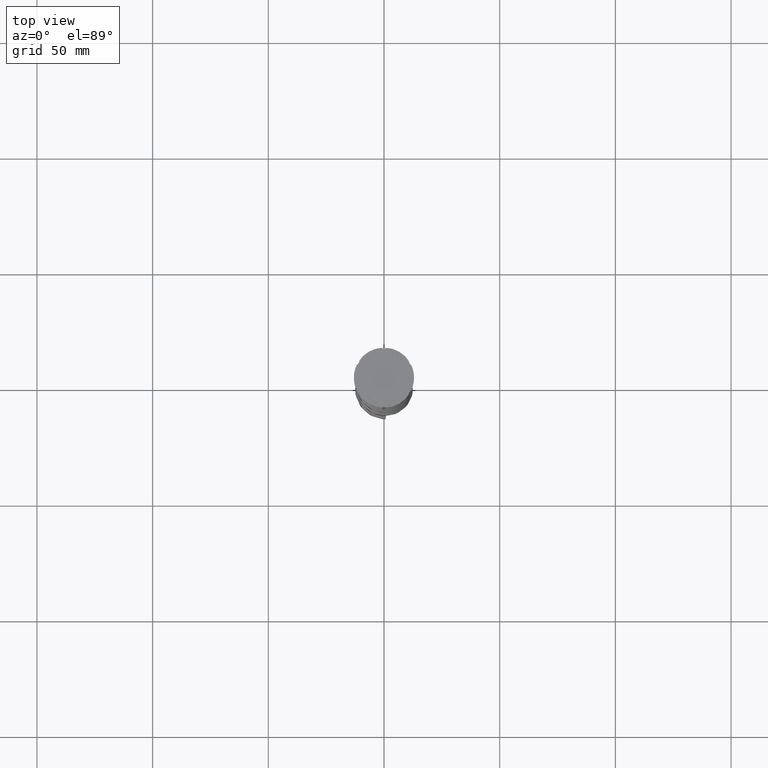
[diagram: clean part render]
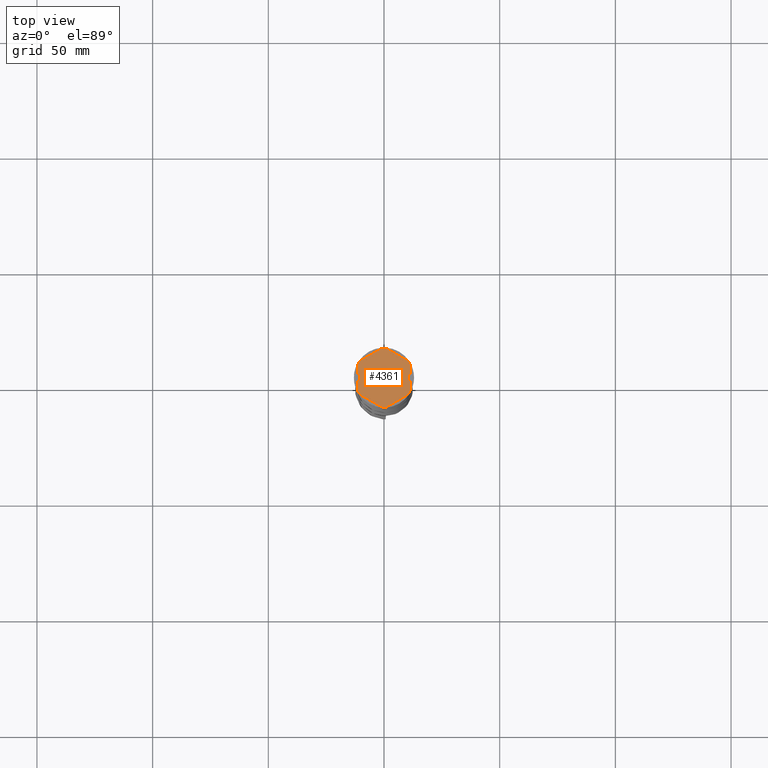
[diagram: same view with one face highlighted and labeled with its STEP entity id]
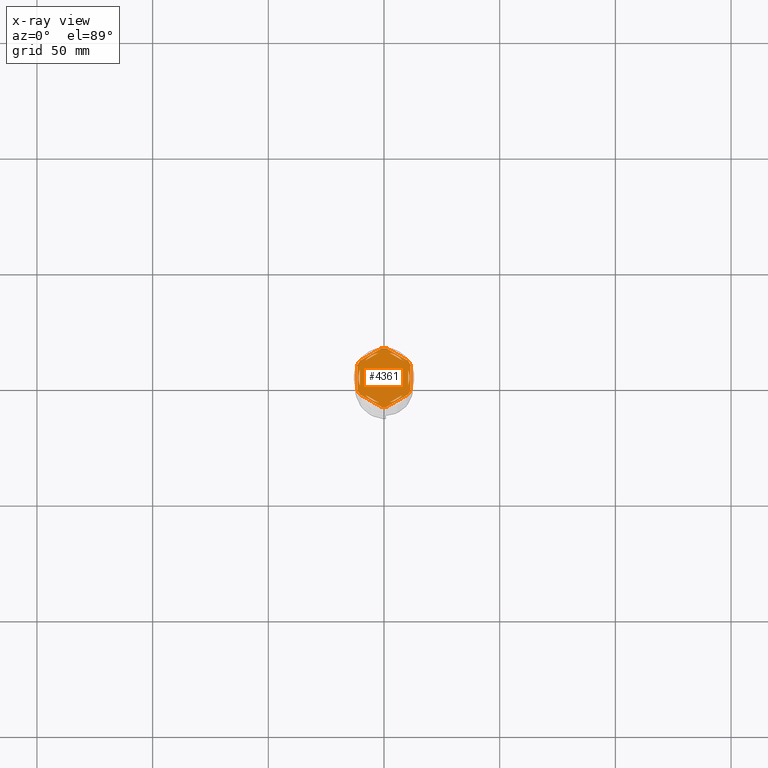
[diagram: x-ray of the same camera — body ghosted, the highlighted face saturated]
A machine part, top view. The second image highlights one B-rep face of the part: STEP entity #4361.
The next image is the same camera in x-ray: the body ghosted, the highlighted face saturated — about 0% of this face is hidden behind the body in this view.
In plain terms, the highlighted planar face has unit normal (0, 0, 1).
Its self-contained STEP definition (entity closure, byte-faithful):
#20 = EDGE_CURVE ( 'NONE', #4263, #2020, #3789, .T. ) ;
#32 = DIRECTION ( 'NONE',  ( 1.000000000000000000, 0.000000000000000000, 0.000000000000000000 ) ) ;
#41 = CARTESIAN_POINT ( 'NONE',  ( -8.089454172900133244, -7.453907108661111280, -1.000000000000000888 ) ) ;
#43 = ORIENTED_EDGE ( 'NONE', *, *, #2613, .F. ) ;
#61 = LINE ( 'NONE', #3528, #1998 ) ;
#68 = ORIENTED_EDGE ( 'NONE', *, *, #1784, .F. ) ;
#96 = AXIS2_PLACEMENT_3D ( 'NONE', #1537, #2940, #1565 ) ;
#107 = ORIENTED_EDGE ( 'NONE', *, *, #3759, .F. ) ;
#118 = EDGE_CURVE ( 'NONE', #2630, #1984, #653, .T. ) ;
#124 = ORIENTED_EDGE ( 'NONE', *, *, #20, .T. ) ;
#132 = CARTESIAN_POINT ( 'NONE',  ( 11.49999999999999822, 5.388877434122992582, -1.000000000000000000 ) ) ;
#168 = VECTOR ( 'NONE', #2298, 1000.000000000000000 ) ;
#215 = EDGE_LOOP ( 'NONE', ( #2163, #4130 ) ) ;
#231 = CIRCLE ( 'NONE', #1174, 12.69999999999999929 ) ;
#244 = EDGE_CURVE ( 'NONE', #2757, #2043, #1571, .T. ) ;
#265 = DIRECTION ( 'NONE',  ( 1.000000000000000000, 0.000000000000000000, 0.000000000000000000 ) ) ;
#276 = ORIENTED_EDGE ( 'NONE', *, *, #244, .F. ) ;
#295 = AXIS2_PLACEMENT_3D ( 'NONE', #2873, #2492, #3873 ) ;
#300 = CARTESIAN_POINT ( 'NONE',  ( -10.49999999999999822, -3.278719262151000624, -1.000000000000000888 ) ) ;
#340 = EDGE_LOOP ( 'NONE', ( #4338, #107 ) ) ;
#398 = ORIENTED_EDGE ( 'NONE', *, *, #2602, .F. ) ;
#426 = ORIENTED_EDGE ( 'NONE', *, *, #4389, .F. ) ;
#448 = DIRECTION ( 'NONE',  ( 0.000000000000000000, -1.000000000000000000, 0.000000000000000000 ) ) ;
#465 = ORIENTED_EDGE ( 'NONE', *, *, #3410, .F. ) ;
#468 = LINE ( 'NONE', #2964, #1248 ) ;
#476 = CARTESIAN_POINT ( 'NONE',  ( -2.410545827099876082, -10.73262637081210435, -1.000000000000000888 ) ) ;
#486 = DIRECTION ( 'NONE',  ( -1.430775808321104180E-16, -1.000000000000000000, 0.000000000000000000 ) ) ;
#500 = DIRECTION ( 'NONE',  ( 1.000000000000000000, 0.000000000000000000, 0.000000000000000000 ) ) ;
#599 = AXIS2_PLACEMENT_3D ( 'NONE', #2456, #4180, #980 ) ;
#653 = CIRCLE ( 'NONE', #2920, 11.00000000000000000 ) ;
#674 = CIRCLE ( 'NONE', #2726, 12.69999999999999929 ) ;
#680 = EDGE_CURVE ( 'NONE', #1489, #2942, #1449, .T. ) ;
#759 = EDGE_CURVE ( 'NONE', #2043, #868, #1680, .T. ) ;
#766 = EDGE_LOOP ( 'NONE', ( #2774, #465 ) ) ;
#784 = FACE_BOUND ( 'NONE', #2083, .T. ) ;
#802 = CARTESIAN_POINT ( 'NONE',  ( -10.41690475583121689, 7.264853426459546348, -1.000000000000000000 ) ) ;
#824 = EDGE_CURVE ( 'NONE', #3751, #3962, #3575, .T. ) ;
#861 = DIRECTION ( 'NONE',  ( -0.000000000000000000, -0.000000000000000000, -1.000000000000000000 ) ) ;
#868 = VERTEX_POINT ( 'NONE', #1131 ) ;
#880 = VERTEX_POINT ( 'NONE', #1840 ) ;
#886 = CIRCLE ( 'NONE', #599, 11.00000000000000000 ) ;
#935 = DIRECTION ( 'NONE',  ( 1.306360520641008153E-16, 1.000000000000000000, 0.000000000000000000 ) ) ;
#943 = VECTOR ( 'NONE', #3356, 1000.000000000000000 ) ;
#944 = LINE ( 'NONE', #3036, #2221 ) ;
#957 = EDGE_LOOP ( 'NONE', ( #1748, #43 ) ) ;
#980 = DIRECTION ( 'NONE',  ( 1.000000000000000000, 0.000000000000000000, 0.000000000000000000 ) ) ;
#985 = CARTESIAN_POINT ( 'NONE',  ( -10.49999999999999822, 3.278719262151000624, -1.000000000000000888 ) ) ;
#1021 = DIRECTION ( 'NONE',  ( 0.8660254037844387076, -0.4999999999999999445, 0.000000000000000000 ) ) ;
#1033 = AXIS2_PLACEMENT_3D ( 'NONE', #3767, #3111, #4490 ) ;
#1088 = ORIENTED_EDGE ( 'NONE', *, *, #2124, .T. ) ;
#1106 = AXIS2_PLACEMENT_3D ( 'NONE', #3730, #3343, #3049 ) ;
#1110 = CARTESIAN_POINT ( 'NONE',  ( 0.000000000000000000, 0.000000000000000000, -1.000000000000000000 ) ) ;
#1131 = CARTESIAN_POINT ( 'NONE',  ( -11.00000000000000000, 0.000000000000000000, -1.000000000000000000 ) ) ;
#1164 = ORIENTED_EDGE ( 'NONE', *, *, #680, .T. ) ;
#1174 = AXIS2_PLACEMENT_3D ( 'NONE', #3690, #3397, #265 ) ;
#1187 = DIRECTION ( 'NONE',  ( -0.000000000000000000, -0.000000000000000000, -1.000000000000000000 ) ) ;
#1248 = VECTOR ( 'NONE', #486, 1000.000000000000000 ) ;
#1264 = VERTEX_POINT ( 'NONE', #1909 ) ;
#1274 = CARTESIAN_POINT ( 'NONE',  ( 8.089454172900138573, 7.453907108661105063, -1.000000000000000888 ) ) ;
#1295 = EDGE_CURVE ( 'NONE', #1264, #880, #468, .T. ) ;
#1304 = VERTEX_POINT ( 'NONE', #132 ) ;
#1359 = CARTESIAN_POINT ( 'NONE',  ( 10.41690475583121156, 7.264853426459550789, -1.000000000000000000 ) ) ;
#1373 = ORIENTED_EDGE ( 'NONE', *, *, #759, .F. ) ;
#1390 = VERTEX_POINT ( 'NONE', #4034 ) ;
#1397 = AXIS2_PLACEMENT_3D ( 'NONE', #2252, #3956, #500 ) ;
#1402 = DIRECTION ( 'NONE',  ( -0.8660254037844388186, 0.4999999999999997224, 0.000000000000000000 ) ) ;
#1408 = CIRCLE ( 'NONE', #3306, 11.00000000000000000 ) ;
#1409 = DIRECTION ( 'NONE',  ( 0.000000000000000000, 0.000000000000000000, 1.000000000000000000 ) ) ;
#1428 = DIRECTION ( 'NONE',  ( -0.8660254037844385966, -0.5000000000000001110, 0.000000000000000000 ) ) ;
#1432 = DIRECTION ( 'NONE',  ( 0.000000000000000000, 0.000000000000000000, 1.000000000000000000 ) ) ;
#1436 = CARTESIAN_POINT ( 'NONE',  ( 0.000000000000000000, 0.000000000000000000, -1.000000000000000000 ) ) ;
#1441 = ORIENTED_EDGE ( 'NONE', *, *, #3943, .T. ) ;
#1449 = LINE ( 'NONE', #2472, #2572 ) ;
#1489 = VERTEX_POINT ( 'NONE', #4080 ) ;
#1512 = EDGE_CURVE ( 'NONE', #1489, #2020, #231, .T. ) ;
#1537 = CARTESIAN_POINT ( 'NONE',  ( 0.000000000000000000, 0.000000000000000000, -1.000000000000000000 ) ) ;
#1565 = DIRECTION ( 'NONE',  ( 1.000000000000000000, 0.000000000000000000, 0.000000000000000000 ) ) ;
#1567 = CARTESIAN_POINT ( 'NONE',  ( 2.410545827099865868, -10.73262637081210791, -1.000000000000000888 ) ) ;
#1571 = LINE ( 'NONE', #3946, #943 ) ;
#1587 = VERTEX_POINT ( 'NONE', #41 ) ;
#1608 = VERTEX_POINT ( 'NONE', #2509 ) ;
#1614 = CIRCLE ( 'NONE', #1397, 12.69999999999999929 ) ;
#1649 = CARTESIAN_POINT ( 'NONE',  ( 8.089454172900135021, -7.453907108661109504, -1.000000000000000888 ) ) ;
#1658 = EDGE_CURVE ( 'NONE', #1733, #1608, #1741, .T. ) ;
#1680 = CIRCLE ( 'NONE', #1825, 11.00000000000000000 ) ;
#1682 = DIRECTION ( 'NONE',  ( 0.000000000000000000, 0.000000000000000000, 1.000000000000000000 ) ) ;
#1733 = VERTEX_POINT ( 'NONE', #1359 ) ;
#1741 = LINE ( 'NONE', #3866, #3221 ) ;
#1748 = ORIENTED_EDGE ( 'NONE', *, *, #824, .F. ) ;
#1764 = VECTOR ( 'NONE', #3131, 1000.000000000000000 ) ;
#1774 = DIRECTION ( 'NONE',  ( 0.8660254037844385966, 0.4999999999999999445, 0.000000000000000000 ) ) ;
#1780 = DIRECTION ( 'NONE',  ( 0.000000000000000000, 0.000000000000000000, 1.000000000000000000 ) ) ;
#1784 = EDGE_CURVE ( 'NONE', #3191, #4077, #1614, .T. ) ;
#1790 = CARTESIAN_POINT ( 'NONE',  ( -1.083095244168783333, 12.65373086058254160, -1.000000000000000000 ) ) ;
#1794 = FACE_BOUND ( 'NONE', #3910, .T. ) ;
#1814 = PLANE ( 'NONE',  #4250 ) ;
#1825 = AXIS2_PLACEMENT_3D ( 'NONE', #2153, #1409, #4196 ) ;
#1831 = VECTOR ( 'NONE', #935, 1000.000000000000000 ) ;
#1840 = CARTESIAN_POINT ( 'NONE',  ( 10.49999999999999467, -3.278719262151014835, -1.000000000000000888 ) ) ;
#1876 = ORIENTED_EDGE ( 'NONE', *, *, #2549, .F. ) ;
#1909 = CARTESIAN_POINT ( 'NONE',  ( 10.49999999999999467, 3.278719262151012170, -1.000000000000000888 ) ) ;
#1922 = DIRECTION ( 'NONE',  ( 1.000000000000000000, -1.776356839400250465E-14, 0.000000000000000000 ) ) ;
#1924 = AXIS2_PLACEMENT_3D ( 'NONE', #2453, #1432, #2474 ) ;
#1975 = CARTESIAN_POINT ( 'NONE',  ( -8.089454172900135021, 7.453907108661106840, -1.000000000000000888 ) ) ;
#1984 = VERTEX_POINT ( 'NONE', #1649 ) ;
#1998 = VECTOR ( 'NONE', #1428, 1000.000000000000114 ) ;
#2002 = VERTEX_POINT ( 'NONE', #3048 ) ;
#2020 = VERTEX_POINT ( 'NONE', #3342 ) ;
#2043 = VERTEX_POINT ( 'NONE', #985 ) ;
#2069 = DIRECTION ( 'NONE',  ( 0.8660254037844387076, -0.4999999999999997780, 0.000000000000000000 ) ) ;
#2079 = AXIS2_PLACEMENT_3D ( 'NONE', #2248, #1187, #1922 ) ;
#2083 = EDGE_LOOP ( 'NONE', ( #4054, #1876 ) ) ;
#2097 = ORIENTED_EDGE ( 'NONE', *, *, #3499, .F. ) ;
#2124 = EDGE_CURVE ( 'NONE', #1390, #1304, #4452, .T. ) ;
#2130 = DIRECTION ( 'NONE',  ( 1.000000000000000000, 0.000000000000000000, -0.000000000000000000 ) ) ;
#2143 = CIRCLE ( 'NONE', #1106, 12.69999999999999929 ) ;
#2153 = CARTESIAN_POINT ( 'NONE',  ( 0.000000000000000000, 0.000000000000000000, -1.000000000000000000 ) ) ;
#2155 = FACE_BOUND ( 'NONE', #957, .T. ) ;
#2163 = ORIENTED_EDGE ( 'NONE', *, *, #2534, .F. ) ;
#2221 = VECTOR ( 'NONE', #3106, 999.9999999999998863 ) ;
#2248 = CARTESIAN_POINT ( 'NONE',  ( 0.000000000000000000, 0.000000000000000000, -1.000000000000000000 ) ) ;
#2252 = CARTESIAN_POINT ( 'NONE',  ( 0.000000000000000000, 0.000000000000000000, -1.000000000000000000 ) ) ;
#2298 = DIRECTION ( 'NONE',  ( 0.8660254037844385966, 0.5000000000000001110, -0.000000000000000000 ) ) ;
#2308 = CARTESIAN_POINT ( 'NONE',  ( 10.41690475583121867, -7.264853426459537467, -1.000000000000000000 ) ) ;
#2320 = CARTESIAN_POINT ( 'NONE',  ( 0.000000000000000000, 0.000000000000000000, -1.000000000000000000 ) ) ;
#2389 = LINE ( 'NONE', #2536, #1764 ) ;
#2453 = CARTESIAN_POINT ( 'NONE',  ( 0.000000000000000000, 0.000000000000000000, -1.000000000000000000 ) ) ;
#2456 = CARTESIAN_POINT ( 'NONE',  ( 0.000000000000000000, 0.000000000000000000, -1.000000000000000000 ) ) ;
#2472 = CARTESIAN_POINT ( 'NONE',  ( 5.612359739892467248E-18, -13.27905619136138959, -1.000000000000000000 ) ) ;
#2474 = DIRECTION ( 'NONE',  ( 1.000000000000000000, 0.000000000000000000, 0.000000000000000000 ) ) ;
#2492 = DIRECTION ( 'NONE',  ( 0.000000000000000000, 0.000000000000000000, 1.000000000000000000 ) ) ;
#2506 = VECTOR ( 'NONE', #1021, 999.9999999999998863 ) ;
#2509 = CARTESIAN_POINT ( 'NONE',  ( 1.083095244168781557, 12.65373086058254160, -1.000000000000000000 ) ) ;
#2520 = CARTESIAN_POINT ( 'NONE',  ( -11.50000000000000000, 6.639528095680691244, -1.000000000000000000 ) ) ;
#2534 = EDGE_CURVE ( 'NONE', #880, #1264, #886, .T. ) ;
#2536 = CARTESIAN_POINT ( 'NONE',  ( -10.49999999999999822, -6.062177826491068622, -1.000000000000000888 ) ) ;
#2549 = EDGE_CURVE ( 'NONE', #3431, #1587, #2389, .T. ) ;
#2572 = VECTOR ( 'NONE', #1774, 1000.000000000000114 ) ;
#2602 = EDGE_CURVE ( 'NONE', #4263, #2002, #3083, .T. ) ;
#2613 = EDGE_CURVE ( 'NONE', #3962, #3751, #2766, .T. ) ;
#2621 = CARTESIAN_POINT ( 'NONE',  ( -11.50000000000000000, 5.388877434122992582, -1.000000000000000000 ) ) ;
#2630 = VERTEX_POINT ( 'NONE', #1567 ) ;
#2657 = CIRCLE ( 'NONE', #2079, 12.69999999999999929 ) ;
#2684 = CARTESIAN_POINT ( 'NONE',  ( 11.49999999999999822, -6.639528095680694797, -1.000000000000000000 ) ) ;
#2726 = AXIS2_PLACEMENT_3D ( 'NONE', #2320, #861, #2903 ) ;
#2757 = VERTEX_POINT ( 'NONE', #300 ) ;
#2766 = LINE ( 'NONE', #4155, #2506 ) ;
#2774 = ORIENTED_EDGE ( 'NONE', *, *, #3038, .F. ) ;
#2782 = EDGE_CURVE ( 'NONE', #4004, #1608, #2143, .T. ) ;
#2797 = VERTEX_POINT ( 'NONE', #1975 ) ;
#2873 = CARTESIAN_POINT ( 'NONE',  ( 0.000000000000000000, 0.000000000000000000, -1.000000000000000000 ) ) ;
#2903 = DIRECTION ( 'NONE',  ( 1.000000000000000000, 0.000000000000000000, 0.000000000000000000 ) ) ;
#2920 = AXIS2_PLACEMENT_3D ( 'NONE', #1436, #1780, #32 ) ;
#2940 = DIRECTION ( 'NONE',  ( 0.000000000000000000, 0.000000000000000000, 1.000000000000000000 ) ) ;
#2942 = VERTEX_POINT ( 'NONE', #2308 ) ;
#2954 = CARTESIAN_POINT ( 'NONE',  ( -1.734723475976807094E-15, 12.12435565298214080, -1.000000000000000888 ) ) ;
#2964 = CARTESIAN_POINT ( 'NONE',  ( 10.49999999999999289, -6.062177826491073063, -1.000000000000000888 ) ) ;
#2980 = ORIENTED_EDGE ( 'NONE', *, *, #4391, .T. ) ;
#3023 = CIRCLE ( 'NONE', #1924, 11.00000000000000000 ) ;
#3036 = CARTESIAN_POINT ( 'NONE',  ( -2.602085213965210642E-15, -12.12435565298214080, -1.000000000000000888 ) ) ;
#3038 = EDGE_CURVE ( 'NONE', #3521, #2797, #4463, .T. ) ;
#3048 = CARTESIAN_POINT ( 'NONE',  ( -11.50000000000000000, -5.388877434122992582, -1.000000000000000000 ) ) ;
#3049 = DIRECTION ( 'NONE',  ( 1.000000000000000000, 1.243449787580175325E-14, 0.000000000000000000 ) ) ;
#3083 = CIRCLE ( 'NONE', #1033, 12.69999999999999929 ) ;
#3106 = DIRECTION ( 'NONE',  ( -0.8660254037844387076, -0.4999999999999999445, 0.000000000000000000 ) ) ;
#3108 = CARTESIAN_POINT ( 'NONE',  ( 0.000000000000000000, 0.000000000000000000, -1.000000000000000000 ) ) ;
#3111 = DIRECTION ( 'NONE',  ( -0.000000000000000000, -0.000000000000000000, -1.000000000000000000 ) ) ;
#3131 = DIRECTION ( 'NONE',  ( -0.8660254037844384856, 0.5000000000000002220, 0.000000000000000000 ) ) ;
#3144 = ORIENTED_EDGE ( 'NONE', *, *, #2782, .F. ) ;
#3169 = VECTOR ( 'NONE', #448, 1000.000000000000000 ) ;
#3191 = VERTEX_POINT ( 'NONE', #2621 ) ;
#3195 = FACE_BOUND ( 'NONE', #766, .T. ) ;
#3217 = LINE ( 'NONE', #2520, #3169 ) ;
#3221 = VECTOR ( 'NONE', #1402, 1000.000000000000000 ) ;
#3228 = EDGE_LOOP ( 'NONE', ( #1088, #3526, #3463, #3144, #1441, #68, #2980, #398, #124, #4219, #1164, #2097 ) ) ;
#3306 = AXIS2_PLACEMENT_3D ( 'NONE', #3108, #1682, #4466 ) ;
#3342 = CARTESIAN_POINT ( 'NONE',  ( -1.083095244168779780, -12.65373086058253982, -1.000000000000000000 ) ) ;
#3343 = DIRECTION ( 'NONE',  ( -0.000000000000000000, -0.000000000000000000, -1.000000000000000000 ) ) ;
#3356 = DIRECTION ( 'NONE',  ( 0.000000000000000000, 1.000000000000000000, 0.000000000000000000 ) ) ;
#3397 = DIRECTION ( 'NONE',  ( -0.000000000000000000, -0.000000000000000000, -1.000000000000000000 ) ) ;
#3410 = EDGE_CURVE ( 'NONE', #2797, #3521, #3976, .T. ) ;
#3431 = VERTEX_POINT ( 'NONE', #476 ) ;
#3463 = ORIENTED_EDGE ( 'NONE', *, *, #1658, .T. ) ;
#3479 = EDGE_CURVE ( 'NONE', #1733, #1304, #2657, .T. ) ;
#3499 = EDGE_CURVE ( 'NONE', #1390, #2942, #674, .T. ) ;
#3521 = VERTEX_POINT ( 'NONE', #3997 ) ;
#3526 = ORIENTED_EDGE ( 'NONE', *, *, #3479, .F. ) ;
#3528 = CARTESIAN_POINT ( 'NONE',  ( 0.000000000000000000, 13.27905619136138959, -1.000000000000000000 ) ) ;
#3567 = CARTESIAN_POINT ( 'NONE',  ( -10.41690475583121334, -7.264853426459548125, -1.000000000000000000 ) ) ;
#3570 = VECTOR ( 'NONE', #2069, 1000.000000000000227 ) ;
#3574 = FACE_OUTER_BOUND ( 'NONE', #3228, .T. ) ;
#3575 = CIRCLE ( 'NONE', #295, 11.00000000000000000 ) ;
#3639 = EDGE_CURVE ( 'NONE', #1587, #3431, #1408, .T. ) ;
#3690 = CARTESIAN_POINT ( 'NONE',  ( 0.000000000000000000, 0.000000000000000000, -1.000000000000000000 ) ) ;
#3730 = CARTESIAN_POINT ( 'NONE',  ( 0.000000000000000000, 0.000000000000000000, -1.000000000000000000 ) ) ;
#3751 = VERTEX_POINT ( 'NONE', #1274 ) ;
#3759 = EDGE_CURVE ( 'NONE', #1984, #2630, #944, .T. ) ;
#3767 = CARTESIAN_POINT ( 'NONE',  ( 0.000000000000000000, 0.000000000000000000, -1.000000000000000000 ) ) ;
#3789 = LINE ( 'NONE', #4157, #3570 ) ;
#3854 = FACE_BOUND ( 'NONE', #340, .T. ) ;
#3866 = CARTESIAN_POINT ( 'NONE',  ( 11.50000000000000000, 6.639528095680698350, -1.000000000000000000 ) ) ;
#3873 = DIRECTION ( 'NONE',  ( 1.000000000000000000, 0.000000000000000000, 0.000000000000000000 ) ) ;
#3910 = EDGE_LOOP ( 'NONE', ( #1373, #276, #426 ) ) ;
#3943 = EDGE_CURVE ( 'NONE', #4004, #4077, #61, .T. ) ;
#3946 = CARTESIAN_POINT ( 'NONE',  ( -10.49999999999999822, 6.062177826491068622, -1.000000000000000888 ) ) ;
#3956 = DIRECTION ( 'NONE',  ( -0.000000000000000000, -0.000000000000000000, -1.000000000000000000 ) ) ;
#3962 = VERTEX_POINT ( 'NONE', #4503 ) ;
#3976 = LINE ( 'NONE', #2954, #168 ) ;
#3997 = CARTESIAN_POINT ( 'NONE',  ( -2.410545827099867200, 10.73262637081210613, -1.000000000000000888 ) ) ;
#4004 = VERTEX_POINT ( 'NONE', #1790 ) ;
#4034 = CARTESIAN_POINT ( 'NONE',  ( 11.49999999999999822, -5.388877434122996135, -1.000000000000000000 ) ) ;
#4054 = ORIENTED_EDGE ( 'NONE', *, *, #3639, .F. ) ;
#4077 = VERTEX_POINT ( 'NONE', #802 ) ;
#4080 = CARTESIAN_POINT ( 'NONE',  ( 1.083095244168774673, -12.65373086058253982, -1.000000000000000000 ) ) ;
#4130 = ORIENTED_EDGE ( 'NONE', *, *, #1295, .F. ) ;
#4155 = CARTESIAN_POINT ( 'NONE',  ( 10.49999999999999467, 6.062177826491072175, -1.000000000000000888 ) ) ;
#4157 = CARTESIAN_POINT ( 'NONE',  ( -11.50000000000000000, -6.639528095680696573, -1.000000000000000000 ) ) ;
#4180 = DIRECTION ( 'NONE',  ( 0.000000000000000000, 0.000000000000000000, 1.000000000000000000 ) ) ;
#4196 = DIRECTION ( 'NONE',  ( 1.000000000000000000, 0.000000000000000000, 0.000000000000000000 ) ) ;
#4198 = FACE_BOUND ( 'NONE', #215, .T. ) ;
#4219 = ORIENTED_EDGE ( 'NONE', *, *, #1512, .F. ) ;
#4250 = AXIS2_PLACEMENT_3D ( 'NONE', #1110, #4283, #2130 ) ;
#4263 = VERTEX_POINT ( 'NONE', #3567 ) ;
#4283 = DIRECTION ( 'NONE',  ( 0.000000000000000000, 0.000000000000000000, 1.000000000000000000 ) ) ;
#4338 = ORIENTED_EDGE ( 'NONE', *, *, #118, .F. ) ;
#4361 = ADVANCED_FACE ( 'NONE', ( #2155, #4198, #3854, #784, #1794, #3195, #3574 ), #1814, .T. ) ;
#4389 = EDGE_CURVE ( 'NONE', #868, #2757, #3023, .T. ) ;
#4391 = EDGE_CURVE ( 'NONE', #3191, #2002, #3217, .T. ) ;
#4452 = LINE ( 'NONE', #2684, #1831 ) ;
#4463 = CIRCLE ( 'NONE', #96, 11.00000000000000000 ) ;
#4466 = DIRECTION ( 'NONE',  ( 1.000000000000000000, 0.000000000000000000, 0.000000000000000000 ) ) ;
#4490 = DIRECTION ( 'NONE',  ( 1.000000000000000000, 7.105427357601001859E-15, 0.000000000000000000 ) ) ;
#4503 = CARTESIAN_POINT ( 'NONE',  ( 2.410545827099861871, 10.73262637081210791, -1.000000000000000888 ) ) ;